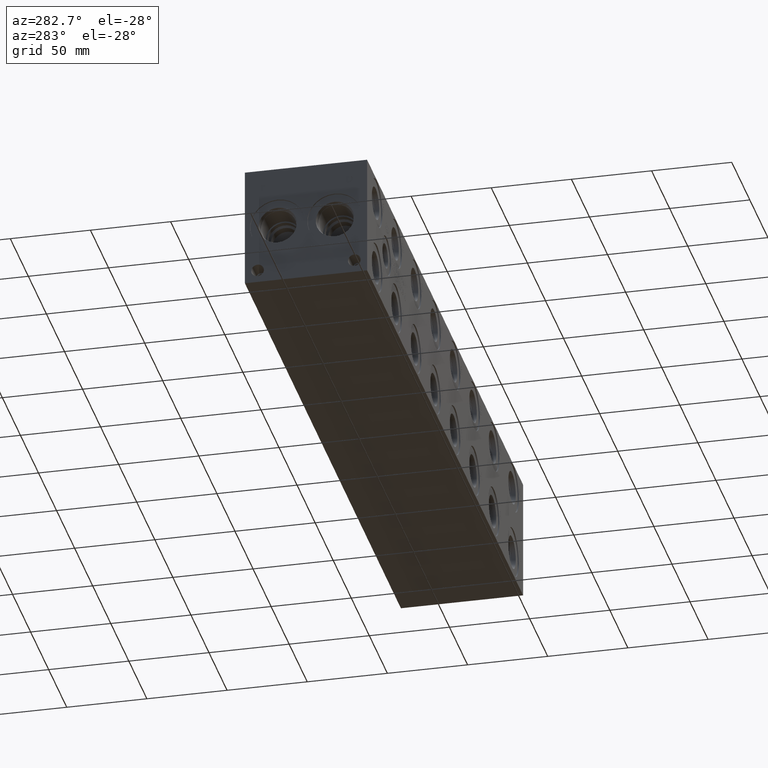
[diagram: clean part render]
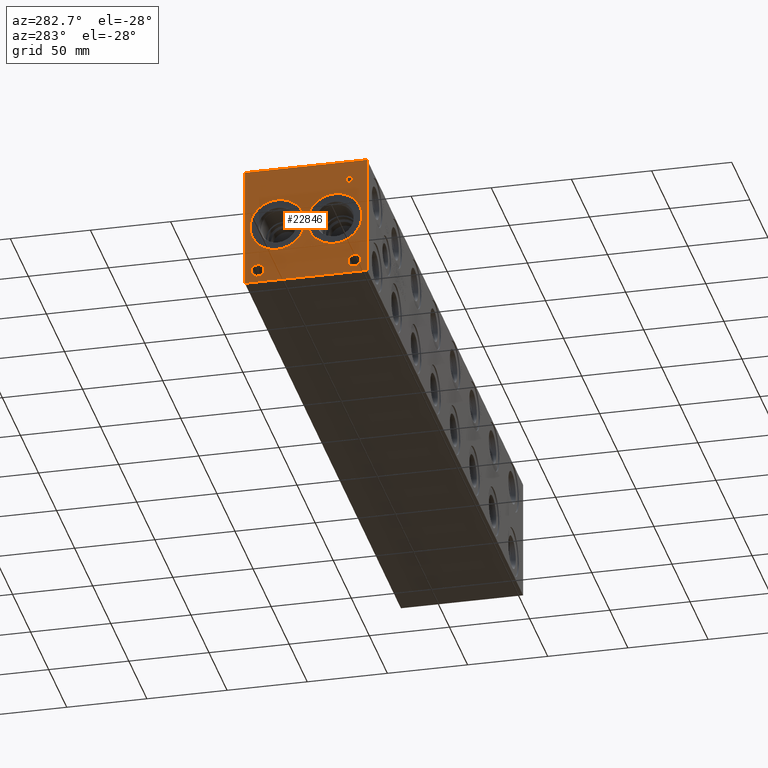
[diagram: same view with one face highlighted and labeled with its STEP entity id]
A machine part, auxiliary view. The second image highlights one B-rep face of the part: STEP entity #22846.
In plain terms, the highlighted planar face has unit normal (-1, 0, 0).
Its self-contained STEP definition (entity closure, byte-faithful):
#444=CIRCLE('',#23856,17.0688);
#445=CIRCLE('',#23857,17.0688);
#446=CIRCLE('',#23858,17.0688);
#447=CIRCLE('',#23859,17.0688);
#448=CIRCLE('',#23860,3.9624);
#449=CIRCLE('',#23861,3.9624);
#450=CIRCLE('',#23862,3.9624);
#451=CIRCLE('',#23863,3.9624);
#1340=FACE_BOUND('',#4126,.T.);
#1341=FACE_BOUND('',#4127,.T.);
#1342=FACE_BOUND('',#4128,.T.);
#1343=FACE_BOUND('',#4129,.T.);
#1344=FACE_BOUND('',#4130,.T.);
#1345=FACE_BOUND('',#4131,.T.);
#1968=PLANE('',#23855);
#2804=FACE_OUTER_BOUND('',#4125,.T.);
#4125=EDGE_LOOP('',(#18614,#18615,#18616,#18617));
#4126=EDGE_LOOP('',(#18618,#18619));
#4127=EDGE_LOOP('',(#18620,#18621));
#4128=EDGE_LOOP('',(#18622,#18623));
#4129=EDGE_LOOP('',(#18624,#18625));
#4130=EDGE_LOOP('',(#18626,#18627,#18628,#18629,#18630,#18631,#18632,#18633));
#4131=EDGE_LOOP('',(#18634,#18635,#18636,#18637,#18638,#18639,#18640,#18641,
#18642));
#4815=LINE('',#30938,#6689);
#6209=LINE('',#38219,#8083);
#6212=LINE('',#38225,#8086);
#6215=LINE('',#38231,#8089);
#6218=LINE('',#38237,#8092);
#6221=LINE('',#38243,#8095);
#6225=LINE('',#38285,#8099);
#6226=LINE('',#38287,#8100);
#6227=LINE('',#38288,#8101);
#6228=LINE('',#38307,#8102);
#6229=LINE('',#38309,#8103);
#6230=LINE('',#38311,#8104);
#6231=LINE('',#38313,#8105);
#6232=LINE('',#38315,#8106);
#6233=LINE('',#38317,#8107);
#6234=LINE('',#38319,#8108);
#6235=LINE('',#38320,#8109);
#6689=VECTOR('',#25211,10.);
#8083=VECTOR('',#27593,10.);
#8086=VECTOR('',#27598,10.);
#8089=VECTOR('',#27603,10.);
#8092=VECTOR('',#27608,10.);
#8095=VECTOR('',#27613,10.);
#8099=VECTOR('',#27621,10.);
#8100=VECTOR('',#27622,10.);
#8101=VECTOR('',#27623,10.);
#8102=VECTOR('',#27640,10.);
#8103=VECTOR('',#27641,10.);
#8104=VECTOR('',#27642,10.);
#8105=VECTOR('',#27643,10.);
#8106=VECTOR('',#27644,10.);
#8107=VECTOR('',#27645,10.);
#8108=VECTOR('',#27646,10.);
#8109=VECTOR('',#27647,10.);
#9050=B_SPLINE_CURVE_WITH_KNOTS('',2,(#38186,#38187,#38188,#38189),
 .UNSPECIFIED.,.F.,.F.,(3,1,3),(0.,1.,2.),.UNSPECIFIED.);
#9052=B_SPLINE_CURVE_WITH_KNOTS('',2,(#38207,#38208,#38209,#38210),
 .UNSPECIFIED.,.F.,.F.,(3,1,3),(0.,1.,2.),.UNSPECIFIED.);
#9054=B_SPLINE_CURVE_WITH_KNOTS('',2,(#38256,#38257,#38258,#38259),
 .UNSPECIFIED.,.F.,.F.,(3,1,3),(0.,1.,2.),.UNSPECIFIED.);
#9056=B_SPLINE_CURVE_WITH_KNOTS('',2,(#38274,#38275,#38276,#38277),
 .UNSPECIFIED.,.F.,.F.,(3,1,3),(0.,1.,2.),.UNSPECIFIED.);
#9106=VERTEX_POINT('',#30931);
#9109=VERTEX_POINT('',#30936);
#10416=VERTEX_POINT('',#38184);
#10417=VERTEX_POINT('',#38185);
#10420=VERTEX_POINT('',#38206);
#10422=VERTEX_POINT('',#38218);
#10424=VERTEX_POINT('',#38224);
#10426=VERTEX_POINT('',#38230);
#10428=VERTEX_POINT('',#38236);
#10430=VERTEX_POINT('',#38242);
#10432=VERTEX_POINT('',#38255);
#10434=VERTEX_POINT('',#38284);
#10435=VERTEX_POINT('',#38286);
#10436=VERTEX_POINT('',#38289);
#10437=VERTEX_POINT('',#38290);
#10438=VERTEX_POINT('',#38293);
#10439=VERTEX_POINT('',#38294);
#10440=VERTEX_POINT('',#38297);
#10441=VERTEX_POINT('',#38298);
#10442=VERTEX_POINT('',#38301);
#10443=VERTEX_POINT('',#38302);
#10444=VERTEX_POINT('',#38305);
#10445=VERTEX_POINT('',#38306);
#10446=VERTEX_POINT('',#38308);
#10447=VERTEX_POINT('',#38310);
#10448=VERTEX_POINT('',#38312);
#10449=VERTEX_POINT('',#38314);
#10450=VERTEX_POINT('',#38316);
#10451=VERTEX_POINT('',#38318);
#11424=EDGE_CURVE('',#9106,#9109,#4815,.T.);
#13363=EDGE_CURVE('',#10416,#10417,#9050,.T.);
#13367=EDGE_CURVE('',#10420,#10416,#9052,.T.);
#13370=EDGE_CURVE('',#10422,#10420,#6209,.T.);
#13373=EDGE_CURVE('',#10424,#10422,#6212,.T.);
#13376=EDGE_CURVE('',#10426,#10424,#6215,.T.);
#13379=EDGE_CURVE('',#10428,#10426,#6218,.T.);
#13382=EDGE_CURVE('',#10430,#10428,#6221,.T.);
#13385=EDGE_CURVE('',#10432,#10430,#9054,.T.);
#13388=EDGE_CURVE('',#10417,#10432,#9056,.T.);
#13390=EDGE_CURVE('',#10434,#9106,#6225,.T.);
#13391=EDGE_CURVE('',#10435,#9109,#6226,.T.);
#13392=EDGE_CURVE('',#10434,#10435,#6227,.T.);
#13393=EDGE_CURVE('',#10436,#10437,#444,.T.);
#13394=EDGE_CURVE('',#10437,#10436,#445,.T.);
#13395=EDGE_CURVE('',#10438,#10439,#446,.T.);
#13396=EDGE_CURVE('',#10439,#10438,#447,.T.);
#13397=EDGE_CURVE('',#10440,#10441,#448,.T.);
#13398=EDGE_CURVE('',#10441,#10440,#449,.T.);
#13399=EDGE_CURVE('',#10442,#10443,#450,.T.);
#13400=EDGE_CURVE('',#10443,#10442,#451,.T.);
#13401=EDGE_CURVE('',#10444,#10445,#6228,.T.);
#13402=EDGE_CURVE('',#10445,#10446,#6229,.T.);
#13403=EDGE_CURVE('',#10446,#10447,#6230,.T.);
#13404=EDGE_CURVE('',#10447,#10448,#6231,.T.);
#13405=EDGE_CURVE('',#10448,#10449,#6232,.T.);
#13406=EDGE_CURVE('',#10449,#10450,#6233,.T.);
#13407=EDGE_CURVE('',#10450,#10451,#6234,.T.);
#13408=EDGE_CURVE('',#10451,#10444,#6235,.T.);
#18614=ORIENTED_EDGE('',*,*,#13390,.T.);
#18615=ORIENTED_EDGE('',*,*,#11424,.T.);
#18616=ORIENTED_EDGE('',*,*,#13391,.F.);
#18617=ORIENTED_EDGE('',*,*,#13392,.F.);
#18618=ORIENTED_EDGE('',*,*,#13393,.T.);
#18619=ORIENTED_EDGE('',*,*,#13394,.T.);
#18620=ORIENTED_EDGE('',*,*,#13395,.T.);
#18621=ORIENTED_EDGE('',*,*,#13396,.T.);
#18622=ORIENTED_EDGE('',*,*,#13397,.T.);
#18623=ORIENTED_EDGE('',*,*,#13398,.T.);
#18624=ORIENTED_EDGE('',*,*,#13399,.T.);
#18625=ORIENTED_EDGE('',*,*,#13400,.T.);
#18626=ORIENTED_EDGE('',*,*,#13401,.T.);
#18627=ORIENTED_EDGE('',*,*,#13402,.T.);
#18628=ORIENTED_EDGE('',*,*,#13403,.T.);
#18629=ORIENTED_EDGE('',*,*,#13404,.T.);
#18630=ORIENTED_EDGE('',*,*,#13405,.T.);
#18631=ORIENTED_EDGE('',*,*,#13406,.T.);
#18632=ORIENTED_EDGE('',*,*,#13407,.T.);
#18633=ORIENTED_EDGE('',*,*,#13408,.T.);
#18634=ORIENTED_EDGE('',*,*,#13363,.T.);
#18635=ORIENTED_EDGE('',*,*,#13388,.T.);
#18636=ORIENTED_EDGE('',*,*,#13385,.T.);
#18637=ORIENTED_EDGE('',*,*,#13382,.T.);
#18638=ORIENTED_EDGE('',*,*,#13379,.T.);
#18639=ORIENTED_EDGE('',*,*,#13376,.T.);
#18640=ORIENTED_EDGE('',*,*,#13373,.T.);
#18641=ORIENTED_EDGE('',*,*,#13370,.T.);
#18642=ORIENTED_EDGE('',*,*,#13367,.T.);
#22846=ADVANCED_FACE('',(#2804,#1340,#1341,#1342,#1343,#1344,#1345),#1968,
 .T.);
#23855=AXIS2_PLACEMENT_3D('',#38283,#27619,#27620);
#23856=AXIS2_PLACEMENT_3D('',#38291,#27624,#27625);
#23857=AXIS2_PLACEMENT_3D('',#38292,#27626,#27627);
#23858=AXIS2_PLACEMENT_3D('',#38295,#27628,#27629);
#23859=AXIS2_PLACEMENT_3D('',#38296,#27630,#27631);
#23860=AXIS2_PLACEMENT_3D('',#38299,#27632,#27633);
#23861=AXIS2_PLACEMENT_3D('',#38300,#27634,#27635);
#23862=AXIS2_PLACEMENT_3D('',#38303,#27636,#27637);
#23863=AXIS2_PLACEMENT_3D('',#38304,#27638,#27639);
#25211=DIRECTION('',(0.,0.,1.));
#27593=DIRECTION('',(0.,-1.,0.));
#27598=DIRECTION('',(0.,-3.14708893596576E-15,1.));
#27603=DIRECTION('',(0.,1.,0.));
#27608=DIRECTION('',(0.,3.75218139805001E-15,-1.));
#27613=DIRECTION('',(0.,1.,0.));
#27619=DIRECTION('center_axis',(-1.,0.,0.));
#27620=DIRECTION('ref_axis',(0.,-1.,0.));
#27621=DIRECTION('',(0.,-1.,0.));
#27622=DIRECTION('',(0.,-1.,0.));
#27623=DIRECTION('',(0.,0.,1.));
#27624=DIRECTION('center_axis',(1.,0.,0.));
#27625=DIRECTION('ref_axis',(0.,0.,1.));
#27626=DIRECTION('center_axis',(1.,0.,0.));
#27627=DIRECTION('ref_axis',(0.,0.,1.));
#27628=DIRECTION('center_axis',(1.,0.,0.));
#27629=DIRECTION('ref_axis',(0.,0.,1.));
#27630=DIRECTION('center_axis',(1.,0.,0.));
#27631=DIRECTION('ref_axis',(0.,0.,1.));
#27632=DIRECTION('center_axis',(1.,0.,0.));
#27633=DIRECTION('ref_axis',(0.,1.,0.));
#27634=DIRECTION('center_axis',(1.,0.,0.));
#27635=DIRECTION('ref_axis',(0.,1.,0.));
#27636=DIRECTION('center_axis',(1.,0.,0.));
#27637=DIRECTION('ref_axis',(0.,1.,0.));
#27638=DIRECTION('center_axis',(1.,0.,0.));
#27639=DIRECTION('ref_axis',(0.,1.,0.));
#27640=DIRECTION('',(0.,1.,1.05244112384329E-14));
#27641=DIRECTION('',(0.,-3.17280044688052E-15,1.));
#27642=DIRECTION('',(0.,1.,4.16909044227779E-15));
#27643=DIRECTION('',(0.,0.,1.));
#27644=DIRECTION('',(0.,-1.,-3.47984565141735E-15));
#27645=DIRECTION('',(0.,0.,-1.));
#27646=DIRECTION('',(0.,1.,0.));
#27647=DIRECTION('',(0.,3.17280044688052E-15,-1.));
#30931=CARTESIAN_POINT('',(0.,0.,0.));
#30936=CARTESIAN_POINT('',(0.,0.,76.2));
#30938=CARTESIAN_POINT('',(0.,0.,0.));
#38184=CARTESIAN_POINT('',(0.,9.59318279764059,65.4850181439707));
#38185=CARTESIAN_POINT('',(0.,8.83674034546799,63.966987372604));
#38186=CARTESIAN_POINT('Ctrl Pts',(0.,9.59318279764059,65.4850181439707));
#38187=CARTESIAN_POINT('Ctrl Pts',(0.,9.23811797315141,65.2431623939564));
#38188=CARTESIAN_POINT('Ctrl Pts',(0.,8.83674034546799,64.4970116758269));
#38189=CARTESIAN_POINT('Ctrl Pts',(0.,8.83674034546799,63.966987372604));
#38206=CARTESIAN_POINT('',(0.,11.2552978456117,65.8812499046326));
#38207=CARTESIAN_POINT('Ctrl Pts',(0.,11.2552978456117,65.8812499046326));
#38208=CARTESIAN_POINT('Ctrl Pts',(0.,10.6892524732376,65.8812499046326));
#38209=CARTESIAN_POINT('Ctrl Pts',(0.,9.89678895191394,65.6959986918556));
#38210=CARTESIAN_POINT('Ctrl Pts',(0.,9.59318279764059,65.4850181439707));
#38218=CARTESIAN_POINT('',(0.,12.8505166223022,65.8812499046326));
#38219=CARTESIAN_POINT('',(0.,44.5252583111511,65.8812499046326));
#38224=CARTESIAN_POINT('',(0.,12.8505166223022,59.53125));
#38225=CARTESIAN_POINT('',(0.,12.8505166223023,29.7656249999999));
#38230=CARTESIAN_POINT('',(0.,12.0065944307627,59.53125));
#38231=CARTESIAN_POINT('',(0.,44.1032972153814,59.53125));
#38236=CARTESIAN_POINT('',(0.,12.0065944307627,61.8983488299279));
#38237=CARTESIAN_POINT('',(0.,12.0065944307628,30.9491744149638));
#38242=CARTESIAN_POINT('',(0.,11.2913189147628,61.8983488299279));
#38243=CARTESIAN_POINT('',(0.,43.7456594573814,61.8983488299279));
#38255=CARTESIAN_POINT('',(0.,9.39249398379889,62.5570198086904));
#38256=CARTESIAN_POINT('Ctrl Pts',(0.,9.39249398379889,62.5570198086904));
#38257=CARTESIAN_POINT('Ctrl Pts',(0.,9.72182947318016,62.2328301863307));
#38258=CARTESIAN_POINT('Ctrl Pts',(0.,10.6120644679139,61.8983488299279));
#38259=CARTESIAN_POINT('Ctrl Pts',(0.,11.2913189147628,61.8983488299279));
#38274=CARTESIAN_POINT('Ctrl Pts',(0.,8.83674034546799,63.966987372604));
#38275=CARTESIAN_POINT('Ctrl Pts',(0.,8.83674034546799,63.5553180108774));
#38276=CARTESIAN_POINT('Ctrl Pts',(0.,9.13005476569819,62.8143131597695));
#38277=CARTESIAN_POINT('Ctrl Pts',(0.,9.39249398379889,62.5570198086904));
#38283=CARTESIAN_POINT('Origin',(0.,76.2,0.));
#38284=CARTESIAN_POINT('',(0.,76.2,0.));
#38285=CARTESIAN_POINT('',(0.,76.2,0.));
#38286=CARTESIAN_POINT('',(0.,76.2,76.2));
#38287=CARTESIAN_POINT('',(0.,76.2,76.2));
#38288=CARTESIAN_POINT('',(0.,76.2,0.));
#38289=CARTESIAN_POINT('',(0.,55.9562,55.1688));
#38290=CARTESIAN_POINT('',(0.,55.9562,21.0312));
#38291=CARTESIAN_POINT('Origin',(0.,55.9562,38.1));
#38292=CARTESIAN_POINT('Origin',(0.,55.9562,38.1));
#38293=CARTESIAN_POINT('',(0.,20.2438,55.1688));
#38294=CARTESIAN_POINT('',(0.,20.2438,21.0312));
#38295=CARTESIAN_POINT('Origin',(0.,20.2438,38.1));
#38296=CARTESIAN_POINT('Origin',(0.,20.2438,38.1));
#38297=CARTESIAN_POINT('',(0.,72.2376,7.92480000000001));
#38298=CARTESIAN_POINT('',(0.,64.3128,7.92480000000001));
#38299=CARTESIAN_POINT('Origin',(0.,68.2752,7.92480000000001));
#38300=CARTESIAN_POINT('Origin',(0.,68.2752,7.92480000000001));
#38301=CARTESIAN_POINT('',(0.,11.8872,7.92480000000001));
#38302=CARTESIAN_POINT('',(0.,3.9624,7.92480000000001));
#38303=CARTESIAN_POINT('Origin',(0.,7.9248,7.92480000000001));
#38304=CARTESIAN_POINT('Origin',(0.,7.9248,7.92480000000001));
#38305=CARTESIAN_POINT('',(0.,65.293334728547,59.53125));
#38306=CARTESIAN_POINT('',(0.,66.1372569200865,59.53125));
#38307=CARTESIAN_POINT('',(0.,70.7466673642732,59.5312500000001));
#38308=CARTESIAN_POINT('',(0.,66.1372569200865,65.1299533194816));
#38309=CARTESIAN_POINT('',(0.,66.1372569200866,29.765625));
#38310=CARTESIAN_POINT('',(0.,68.2676458670216,65.1299533194816));
#38311=CARTESIAN_POINT('',(0.,71.1686284600431,65.1299533194816));
#38312=CARTESIAN_POINT('',(0.,68.2676458670216,65.8812499046326));
#38313=CARTESIAN_POINT('',(0.,68.2676458670216,32.5649766597408));
#38314=CARTESIAN_POINT('',(0.,63.1629457816119,65.8812499046326));
#38315=CARTESIAN_POINT('',(0.,72.2338229335107,65.8812499046326));
#38316=CARTESIAN_POINT('',(0.,63.1629457816119,65.1299533194816));
#38317=CARTESIAN_POINT('',(0.,63.1629457816119,32.9406249523163));
#38318=CARTESIAN_POINT('',(0.,65.293334728547,65.1299533194816));
#38319=CARTESIAN_POINT('',(0.,69.681472890806,65.1299533194816));
#38320=CARTESIAN_POINT('',(0.,65.2933347285471,32.5649766597408));